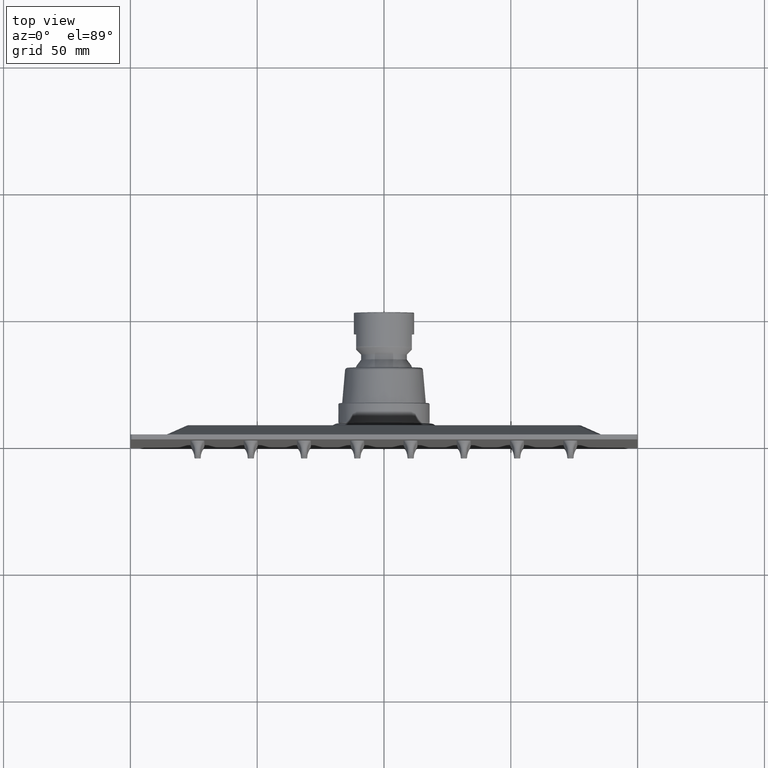
[diagram: clean part render]
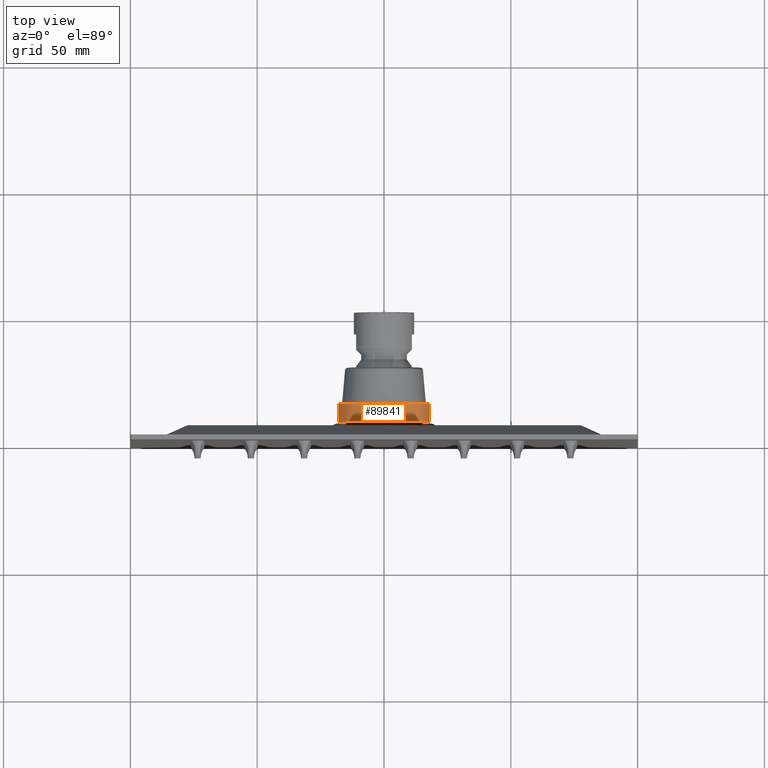
[diagram: same view with one face highlighted and labeled with its STEP entity id]
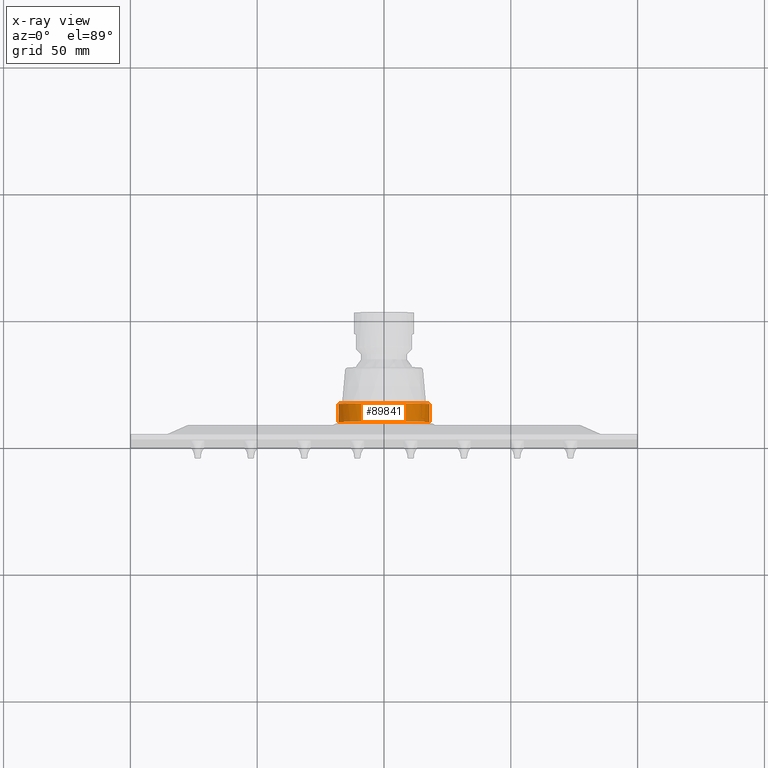
[diagram: x-ray of the same camera — body ghosted, the highlighted face saturated]
A machine part, top view. The second image highlights one B-rep face of the part: STEP entity #89841.
The next image is the same camera in x-ray: the body ghosted, the highlighted face saturated — about 0% of this face is hidden behind the body in this view.
In plain terms, the highlighted cylindrical surface (partial cylindrical patch) has radius 18 mm, axis along (0, 1, 0).
Its self-contained STEP definition (entity closure, byte-faithful):
#84470=DIRECTION('',(0.E0,-1.E0,-3.791765664897E-11));
#84471=VECTOR('',#84470,7.2E0);
#84472=CARTESIAN_POINT('',(1.8E1,2.25E1,-1.166657176503E-10));
#84473=LINE('',#84472,#84471);
#84477=CARTESIAN_POINT('',(-1.800001562088E1,1.621422700785E1,
-9.644956218248E-7));
#84526=CARTESIAN_POINT('',(-1.8E1,2.009994830800E1,4.658500882586E-8));
#84603=CARTESIAN_POINT('',(0.E0,2.25E1,0.E0));
#84604=DIRECTION('',(0.E0,-1.E0,0.E0));
#84605=DIRECTION('',(-1.E0,0.E0,0.E0));
#84606=AXIS2_PLACEMENT_3D('',#84603,#84604,#84605);
#84611=CARTESIAN_POINT('',(0.E0,2.25E1,0.E0));
#84612=DIRECTION('',(0.E0,-1.E0,0.E0));
#84613=DIRECTION('',(-9.999768789768E-1,0.E0,-6.800111168872E-3));
#84614=AXIS2_PLACEMENT_3D('',#84611,#84612,#84613);
#84627=DIRECTION('',(0.E0,-1.E0,1.940999852123E-8));
#84628=VECTOR('',#84627,2.400051691996E0);
#84629=CARTESIAN_POINT('',(-1.8E1,2.25E1,0.E0));
#84630=LINE('',#84629,#84628);
#84634=CARTESIAN_POINT('',(-1.8E1,2.009994830800E1,4.658500882586E-8));
#84635=CARTESIAN_POINT('',(-1.8E1,2.009981909611E1,-1.433770219233E-1));
#84636=CARTESIAN_POINT('',(-1.799665574190E1,2.007176544593E1,
-4.244025435539E-1));
#84637=CARTESIAN_POINT('',(-1.798177326472E1,1.993989472135E1,
-8.420318159537E-1));
#84638=CARTESIAN_POINT('',(-1.796009623892E1,1.973075389097E1,
-1.215062373125E0));
#84639=CARTESIAN_POINT('',(-1.793443506539E1,1.944448478962E1,
-1.544552720291E0));
#84640=CARTESIAN_POINT('',(-1.791806651316E1,1.921759942003E1,
-1.717120080016E0));
#84641=CARTESIAN_POINT('',(-1.791050182083E1,1.909356510904E1,
-1.792694503711E0));
#84646=DIRECTION('',(1.708643689664E-5,-9.999999998535E-1,1.055283446633E-6));
#84647=VECTOR('',#84646,9.142270079871E-1);
#84648=CARTESIAN_POINT('',(-1.800001562088E1,1.621422700785E1,
-9.644956218248E-7));
#84649=LINE('',#84648,#84647);
#84870=CARTESIAN_POINT('',(-1.800001562088E1,1.621422700785E1,
-9.644956218248E-7));
#84871=CARTESIAN_POINT('',(-1.800001562088E1,1.620582036240E1,
-6.349502972497E-2));
#84872=CARTESIAN_POINT('',(-1.799932330391E1,1.619752253010E1,
-1.911560504385E-1));
#84873=CARTESIAN_POINT('',(-1.799622343462E1,1.620967163116E1,
-3.855902827282E-1));
#84874=CARTESIAN_POINT('',(-1.799100388933E1,1.624732945709E1,
-5.798493577414E-1));
#84875=CARTESIAN_POINT('',(-1.798379772512E1,1.631060575782E1,
-7.713519164179E-1));
#84876=CARTESIAN_POINT('',(-1.797480874075E1,1.640023035876E1,
-9.578844514272E-1));
#84877=CARTESIAN_POINT('',(-1.796423969682E1,1.651729958450E1,
-1.138698832411E0));
#84878=CARTESIAN_POINT('',(-1.795243179561E1,1.666234588202E1,
-1.311276268180E0));
#84879=CARTESIAN_POINT('',(-1.794012061965E1,1.683241284100E1,
-1.469561887904E0));
#84880=CARTESIAN_POINT('',(-1.792796619793E1,1.702613197034E1,
-1.610524542576E0));
#84881=CARTESIAN_POINT('',(-1.791668275074E1,1.724301328919E1,
-1.731038206674E0));
#84882=CARTESIAN_POINT('',(-1.790691329688E1,1.748153121653E1,
-1.828900216967E0));
#84883=CARTESIAN_POINT('',(-1.789940962136E1,1.773789640980E1,
-1.900577015395E0));
#84884=CARTESIAN_POINT('',(-1.789487222764E1,1.800361211952E1,
-1.942609124870E0));
#84885=CARTESIAN_POINT('',(-1.789368377371E1,1.827704468235E1,
-1.953467936751E0));
#84886=CARTESIAN_POINT('',(-1.789595825963E1,1.855489146304E1,
-1.932630609838E0));
#84887=CARTESIAN_POINT('',(-1.790157507053E1,1.883023120213E1,
-1.880205507484E0));
#84888=CARTESIAN_POINT('',(-1.790723834897E1,1.900667461540E1,
-1.825297945352E0));
#84889=CARTESIAN_POINT('',(-1.791050182083E1,1.909356510904E1,
-1.792694503711E0));
#85105=CARTESIAN_POINT('',(-5.329070518201E-14,1.53E1,0.E0));
#85106=DIRECTION('',(0.E0,1.E0,0.E0));
#85107=DIRECTION('',(1.E0,0.E0,-1.296308650020E-11));
#85108=AXIS2_PLACEMENT_3D('',#85105,#85106,#85107);
#85113=CARTESIAN_POINT('',(-5.329070518201E-14,1.53E1,0.E0));
#85114=DIRECTION('',(0.E0,1.E0,0.E0));
#85115=DIRECTION('',(0.E0,0.E0,-1.E0));
#85116=AXIS2_PLACEMENT_3D('',#85113,#85114,#85115);
#85753=VERTEX_POINT('',#84477);
#85754=VERTEX_POINT('',#84889);
#85756=CARTESIAN_POINT('',(-1.8E1,2.25E1,0.E0));
#85758=VERTEX_POINT('',#85756);
#85759=CARTESIAN_POINT('',(1.8E1,2.25E1,-2.333355570037E-10));
#85760=VERTEX_POINT('',#85759);
#85761=CARTESIAN_POINT('',(1.8E1,1.53E1,-3.896728455229E-10));
#85762=VERTEX_POINT('',#85761);
#85763=CARTESIAN_POINT('',(-1.8E1,1.53E1,0.E0));
#85765=VERTEX_POINT('',#85763);
#85770=VERTEX_POINT('',#84526);
#85779=CARTESIAN_POINT('',(-1.799958382158E1,2.25E1,-1.224020010397E-1));
#85780=VERTEX_POINT('',#85779);
#85781=CARTESIAN_POINT('',(-5.039608441188E-14,1.53E1,-1.8E1));
#85782=VERTEX_POINT('',#85781);
#89821=CARTESIAN_POINT('',(0.E0,2.415E1,0.E0));
#89822=DIRECTION('',(0.E0,-1.E0,0.E0));
#89823=DIRECTION('',(-1.E0,0.E0,0.E0));
#89824=AXIS2_PLACEMENT_3D('',#89821,#89822,#89823);
#89825=CYLINDRICAL_SURFACE('',#89824,1.8E1);
#89826=ORIENTED_EDGE('',*,*,#89815,.F.);
#89827=ORIENTED_EDGE('',*,*,#89813,.F.);
#89828=ORIENTED_EDGE('',*,*,#89764,.T.);
#89830=ORIENTED_EDGE('',*,*,#89829,.T.);
#89832=ORIENTED_EDGE('',*,*,#89831,.F.);
#89833=ORIENTED_EDGE('',*,*,#89750,.T.);
#89835=ORIENTED_EDGE('',*,*,#89834,.F.);
#89837=ORIENTED_EDGE('',*,*,#89836,.F.);
#89838=ORIENTED_EDGE('',*,*,#89746,.F.);
#89839=EDGE_LOOP('',(#89826,#89827,#89828,#89830,#89832,#89833,#89835,#89837,
#89838));
#89840=FACE_OUTER_BOUND('',#89839,.F.);
#89841=ADVANCED_FACE('',(#89840),#89825,.T.);
#84607=CIRCLE('',#84606,1.8E1);
#84615=CIRCLE('',#84614,1.8E1);
#84642=B_SPLINE_CURVE_WITH_KNOTS('',3,(#84634,#84635,#84636,#84637,#84638,
#84639,#84640,#84641),.UNSPECIFIED.,.F.,.F.,(4,1,1,1,1,4),(0.E0,2.E-1,4.E-1,
6.E-1,8.E-1,1.E0),.UNSPECIFIED.);
#84890=B_SPLINE_CURVE_WITH_KNOTS('',3,(#84870,#84871,#84872,#84873,#84874,
#84875,#84876,#84877,#84878,#84879,#84880,#84881,#84882,#84883,#84884,#84885,
#84886,#84887,#84888,#84889),.UNSPECIFIED.,.F.,.F.,(4,1,1,1,1,1,1,1,1,1,1,1,1,1,
1,1,1,4),(0.E0,5.882352941176E-2,1.176470588235E-1,1.764705882353E-1,
2.352941176471E-1,2.941176470588E-1,3.529411764706E-1,4.117647058824E-1,
4.705882352941E-1,5.294117647059E-1,5.882352941176E-1,6.470588235294E-1,
7.058823529412E-1,7.647058823529E-1,8.235294117647E-1,8.823529411765E-1,
9.411764705882E-1,1.E0),.UNSPECIFIED.);
#85109=CIRCLE('',#85108,1.8E1);
#85117=CIRCLE('',#85116,1.8E1);
#89746=EDGE_CURVE('',#85760,#85762,#84473,.T.);
#89750=EDGE_CURVE('',#85753,#85765,#84649,.T.);
#89764=EDGE_CURVE('',#85758,#85770,#84630,.T.);
#89813=EDGE_CURVE('',#85758,#85780,#84607,.T.);
#89815=EDGE_CURVE('',#85780,#85760,#84615,.T.);
#89829=EDGE_CURVE('',#85770,#85754,#84642,.T.);
#89831=EDGE_CURVE('',#85753,#85754,#84890,.T.);
#89834=EDGE_CURVE('',#85782,#85765,#85117,.T.);
#89836=EDGE_CURVE('',#85762,#85782,#85109,.T.);